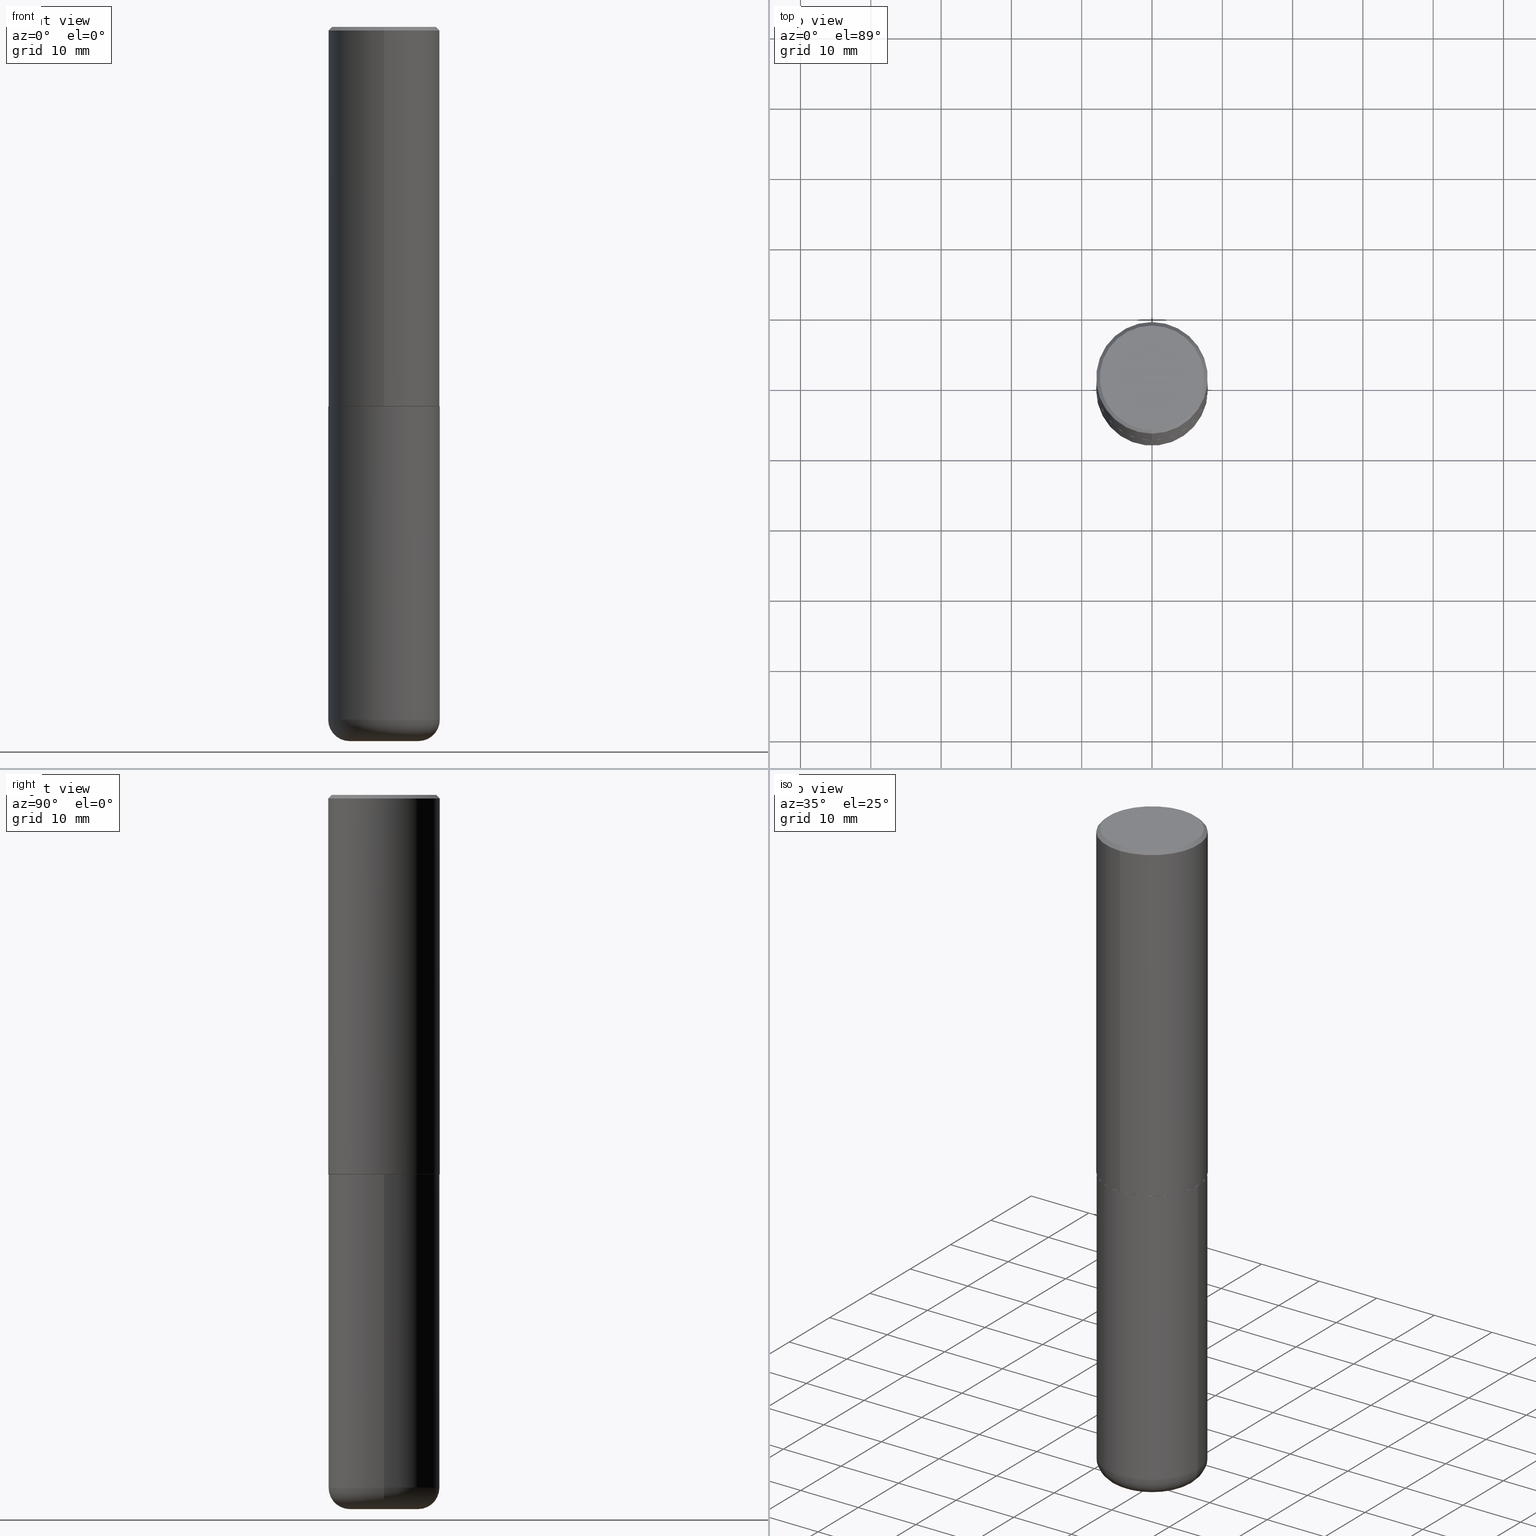
[diagram: canonical four-view strip — front | top / right | iso, engineering-drawing reading convention]
A machine part, canonical four-view strip (front | top / right | iso — engineering-drawing reading convention). The complete STEP part file that produces these views, byte-faithful:
ISO-10303-21;
HEADER;
FILE_DESCRIPTION (( 'STEP AP203' ),
    '1' );
FILE_NAME ('37611.STEP',
    '2024-03-02T05:52:38',
    ( '' ),
    ( '' ),
    'SwSTEP 2.0',
    'SolidWorks 2023',
    '' );
FILE_SCHEMA (( 'CONFIG_CONTROL_DESIGN' ));
ENDSEC;

DATA;
#1 = CARTESIAN_POINT ( 'NONE',  ( 5.195311417418712329E-29, -7.421273547068401324E-15, -2.124999999999999556 ) ) ;
#2 = PRODUCT_DEFINITION_SHAPE ( 'NONE', 'NONE',  #376 ) ;
#3 = DIRECTION ( 'NONE',  ( -2.444852431726452894E-29, 3.492364022149836358E-15, 1.000000000000000000 ) ) ;
#4 = CYLINDRICAL_SURFACE ( 'NONE', #195, 0.3125000000000000000 ) ;
#5 = AXIS2_PLACEMENT_3D ( 'NONE', #113, #397, #325 ) ;
#6 = EDGE_CURVE ( 'NONE', #357, #182, #71, .T. ) ;
#7 = EDGE_CURVE ( 'NONE', #245, #150, #144, .T. ) ;
#8 = PRODUCT ( '37611', '37611', '', ( #410 ) ) ;
#9 = CARTESIAN_POINT ( 'NONE',  ( 2.220446049250313475E-15, 0.3125000000000001665, -1.091363756921824478E-15 ) ) ;
#10 = AXIS2_PLACEMENT_3D ( 'NONE', #249, #158, #126 ) ;
#11 = APPROVAL ( #224, 'UNSPECIFIED' ) ;
#12 = CARTESIAN_POINT ( 'NONE',  ( 2.213340621892763743E-15, 0.3114999999999925606, -2.125000000000000888 ) ) ;
#13 = FACE_OUTER_BOUND ( 'NONE', #298, .T. ) ;
#14 = DIRECTION ( 'NONE',  ( -6.982962677686265922E-15, -1.000000000000000000, 3.507991003100177457E-15 ) ) ;
#15 = DIRECTION ( 'NONE',  ( -6.982962677686265922E-15, -1.000000000000000000, 3.492364022149836358E-15 ) ) ;
#16 = DIRECTION ( 'NONE',  ( -1.000000000000000000, 7.105427357600998703E-15, 0.000000000000000000 ) ) ;
#17 = ADVANCED_FACE ( 'NONE', ( #154 ), #215, .T. ) ;
#18 = AXIS2_PLACEMENT_3D ( 'NONE', #269, #400, #14 ) ;
#19 = AXIS2_PLACEMENT_3D ( 'NONE', #248, #415, #252 ) ;
#20 = DIRECTION ( 'NONE',  ( 1.000000000000000000, -6.982962677686276177E-15, 0.000000000000000000 ) ) ;
#21 = ORIENTED_EDGE ( 'NONE', *, *, #167, .F. ) ;
#22 = APPLICATION_PROTOCOL_DEFINITION ( 'international standard', 'config_control_design', 1994, #161 ) ;
#23 = DIRECTION ( 'NONE',  ( 6.982962677686265133E-15, 1.000000000000000000, -3.496765431890256920E-15 ) ) ;
#24 = VERTEX_POINT ( 'NONE', #85 ) ;
#25 = APPROVAL ( #131, 'UNSPECIFIED' ) ;
#26 = CC_DESIGN_DATE_AND_TIME_ASSIGNMENT ( #417, #383, ( #76 ) ) ;
#27 = APPROVAL_ROLE ( '' ) ;
#28 = DIRECTION ( 'NONE',  ( -6.982962677686265133E-15, -1.000000000000000000, 3.492364022149836753E-15 ) ) ;
#29 = VECTOR ( 'NONE', #149, 39.37007874015748143 ) ;
#30 = ORIENTED_EDGE ( 'NONE', *, *, #231, .F. ) ;
#31 = ORIENTED_EDGE ( 'NONE', *, *, #271, .T. ) ;
#32 = APPROVAL_DATE_TIME ( #303, #367 ) ;
#33 = DIRECTION ( 'NONE',  ( 4.937700262164541731E-15, 0.7071067811865442421, -0.7071067811865507924 ) ) ;
#34 = ORIENTED_EDGE ( 'NONE', *, *, #260, .F. ) ;
#35 = COORDINATED_UNIVERSAL_TIME_OFFSET ( 5, 0, .BEHIND. ) ;
#36 = DIRECTION ( 'NONE',  ( -2.444852431726452894E-29, 3.492364022149836358E-15, 1.000000000000000000 ) ) ;
#37 = ORGANIZATION ( 'UNSPECIFIED', 'UNSPECIFIED', '' ) ;
#38 = ORIENTED_EDGE ( 'NONE', *, *, #42, .F. ) ;
#39 = DIRECTION ( 'NONE',  ( -2.445468806185136597E-29, 3.491481338843145583E-15, 1.000000000000000000 ) ) ;
#40 = CARTESIAN_POINT ( 'NONE',  ( 5.196621213143414147E-29, -7.419397845041682046E-15, -2.124999999999999556 ) ) ;
#41 = ADVANCED_FACE ( 'NONE', ( #61 ), #112, .F. ) ;
#42 = EDGE_CURVE ( 'NONE', #408, #360, #333, .T. ) ;
#43 = CALENDAR_DATE ( 2024, 2, 3 ) ;
#44 = CONICAL_SURFACE ( 'NONE', #75, 0.3125000000000000000, 0.7853981633974471688 ) ;
#45 = APPROVAL_PERSON_ORGANIZATION ( #305, #367, #27 ) ;
#46 = CARTESIAN_POINT ( 'NONE',  ( 5.195311417418712329E-29, -7.421273547068401324E-15, -2.124999999999999556 ) ) ;
#47 = PRODUCT_RELATED_PRODUCT_CATEGORY ( 'detail', '', ( #8 ) ) ;
#48 = CARTESIAN_POINT ( 'NONE',  ( -0.1925000000000000044, -1.217915282837321360E-14, -3.880000000000000338 ) ) ;
#49 = TOROIDAL_SURFACE ( 'NONE', #151, 0.1925000000000000044, 0.1200000000000001898 ) ;
#50 = DIRECTION ( 'NONE',  ( 1.000000000000000000, -6.982962677686266711E-15, 4.876176775795936353E-29 ) ) ;
#51 = DIRECTION ( 'NONE',  ( -6.982962677686265133E-15, -1.000000000000000000, 3.492364022149836753E-15 ) ) ;
#52 = LINE ( 'NONE', #118, #59 ) ;
#53 = ORIENTED_EDGE ( 'NONE', *, *, #342, .T. ) ;
#54 = EDGE_CURVE ( 'NONE', #57, #226, #79, .T. ) ;
#55 = DIMENSIONAL_EXPONENTS ( 1.000000000000000000, 0.000000000000000000, 0.000000000000000000, 0.000000000000000000, 0.000000000000000000, 0.000000000000000000, 0.000000000000000000 ) ;
#56 = EDGE_CURVE ( 'NONE', #24, #57, #173, .T. ) ;
#57 = VERTEX_POINT ( 'NONE', #329 ) ;
#58 = AXIS2_PLACEMENT_3D ( 'NONE', #289, #3, #262 ) ;
#59 = VECTOR ( 'NONE', #180, 39.37007874015748143 ) ;
#60 = CALENDAR_DATE ( 2024, 2, 3 ) ;
#61 = FACE_OUTER_BOUND ( 'NONE', #261, .T. ) ;
#62 = CALENDAR_DATE ( 2024, 2, 3 ) ;
#63 = DIRECTION ( 'NONE',  ( 6.982962677686265922E-15, 1.000000000000000000, -3.492364022149836358E-15 ) ) ;
#64 = COORDINATED_UNIVERSAL_TIME_OFFSET ( 5, 0, .BEHIND. ) ;
#65 = CARTESIAN_POINT ( 'NONE',  ( 0.000000000000000000, 0.000000000000000000, 0.000000000000000000 ) ) ;
#66 = ORIENTED_EDGE ( 'NONE', *, *, #271, .F. ) ;
#67 = PERSON_AND_ORGANIZATION ( #105, #37 ) ;
#68 = ADVANCED_FACE ( 'NONE', ( #136 ), #265, .T. ) ;
#69 = DIRECTION ( 'NONE',  ( 2.444852431726452894E-29, -3.492364022149836358E-15, -1.000000000000000000 ) ) ;
#70 = DESIGN_CONTEXT ( 'detailed design', #161, 'design' ) ;
#71 = CIRCLE ( 'NONE', #169, 0.2924999999999999822 ) ;
#72 = ORIENTED_EDGE ( 'NONE', *, *, #394, .T. ) ;
#73 = CARTESIAN_POINT ( 'NONE',  ( 0.000000000000000000, 0.000000000000000000, 0.000000000000000000 ) ) ;
#74 = CC_DESIGN_PERSON_AND_ORGANIZATION_ASSIGNMENT ( #337, #157, ( #267 ) ) ;
#75 = AXIS2_PLACEMENT_3D ( 'NONE', #320, #138, #196 ) ;
#76 = SECURITY_CLASSIFICATION ( '', '', #313 ) ;
#77 = FACE_OUTER_BOUND ( 'NONE', #206, .T. ) ;
#78 = CARTESIAN_POINT ( 'NONE',  ( 9.488418967998330085E-29, -1.354694759471140570E-14, -3.880000000000000338 ) ) ;
#79 = LINE ( 'NONE', #179, #307 ) ;
#80 = DIRECTION ( 'NONE',  ( -2.444852431726452894E-29, 3.492364022149836358E-15, 1.000000000000000000 ) ) ;
#81 = ORIENTED_EDGE ( 'NONE', *, *, #312, .F. ) ;
#82 = VECTOR ( 'NONE', #365, 39.37007874015748143 ) ;
#83 = DIRECTION ( 'NONE',  ( 1.000000000000000000, -6.982962677686265133E-15, 0.000000000000000000 ) ) ;
#84 = EDGE_CURVE ( 'NONE', #408, #245, #324, .T. ) ;
#85 = CARTESIAN_POINT ( 'NONE',  ( 2.216893335571564642E-15, 0.3114999999999925606, -2.125000000000000888 ) ) ;
#86 = ADVANCED_FACE ( 'NONE', ( #191 ), #346, .T. ) ;
#87 = DIRECTION ( 'NONE',  ( 5.024295867788576727E-15, 0.7071067811866224018, 0.7071067811864726327 ) ) ;
#88 = EDGE_LOOP ( 'NONE', ( #331, #197, #163, #95 ) ) ;
#89 = EDGE_CURVE ( 'NONE', #182, #404, #345, .T. ) ;
#90 = DIRECTION ( 'NONE',  ( -6.982962677686266711E-15, -1.000000000000000000, 3.491481338843145583E-15 ) ) ;
#91 = APPLICATION_PROTOCOL_DEFINITION ( 'international standard', 'config_control_design', 1994, #263 ) ;
#92 = PLANE ( 'NONE',  #347 ) ;
#93 = PERSON_AND_ORGANIZATION ( #105, #37 ) ;
#94 = DIRECTION ( 'NONE',  ( 2.444852431726452333E-29, -3.492364022149836358E-15, -1.000000000000000000 ) ) ;
#95 = ORIENTED_EDGE ( 'NONE', *, *, #407, .F. ) ;
#96 = PERSON_AND_ORGANIZATION ( #105, #37 ) ;
#97 = CLOSED_SHELL ( 'NONE', ( #321, #212, #41, #244, #284, #142 ) ) ;
#98 = CARTESIAN_POINT ( 'NONE',  ( 2.112346210000095838E-15, 0.2924999999999999822, -1.012721266631419361E-15 ) ) ;
#99 = AXIS2_PLACEMENT_3D ( 'NONE', #213, #111, #332 ) ;
#100 = ADVANCED_FACE ( 'NONE', ( #168 ), #220, .T. ) ;
#101 = EDGE_LOOP ( 'NONE', ( #38, #148, #134, #270 ) ) ;
#102 = PERSON_AND_ORGANIZATION ( #105, #37 ) ;
#103 = ORIENTED_EDGE ( 'NONE', *, *, #407, .T. ) ;
#104 = DIRECTION ( 'NONE',  ( 1.000000000000000000, -6.982962677686265922E-15, 4.883557194083112340E-29 ) ) ;
#105 = PERSON ( 'UNSPECIFIED', 'UNSPECIFIED', 'UNSPECIFIED', ('UNSPECIFIED'), ('UNSPECIFIED'), ('UNSPECIFIED') ) ;
#106 = CARTESIAN_POINT ( 'NONE',  ( 2.220446049250340297E-15, 0.3124999999999928391, -2.124000000000000554 ) ) ;
#107 = CIRCLE ( 'NONE', #116, 0.3125000000000000000 ) ;
#108 = CIRCLE ( 'NONE', #292, 0.3125000000000000000 ) ;
#109 = EDGE_CURVE ( 'NONE', #182, #357, #222, .T. ) ;
#110 = CIRCLE ( 'NONE', #391, 0.3125000000000000000 ) ;
#111 = DIRECTION ( 'NONE',  ( -2.444852431726452894E-29, 3.492364022149836358E-15, 1.000000000000000000 ) ) ;
#112 = PLANE ( 'NONE',  #380 ) ;
#113 = CARTESIAN_POINT ( 'NONE',  ( 9.488418967998330085E-29, -1.354694759471140570E-14, -3.880000000000000338 ) ) ;
#114 = VERTEX_POINT ( 'NONE', #281 ) ;
#115 = ORIENTED_EDGE ( 'NONE', *, *, #89, .F. ) ;
#116 = AXIS2_PLACEMENT_3D ( 'NONE', #253, #377, #255 ) ;
#117 = CC_DESIGN_APPROVAL ( #367, ( #267 ) ) ;
#118 = CARTESIAN_POINT ( 'NONE',  ( -2.143905624303602824E-15, -0.3125000000000000555, -0.01999999999999897693 ) ) ;
#119 = EDGE_LOOP ( 'NONE', ( #66, #103, #247, #225 ) ) ;
#120 = DIRECTION ( 'NONE',  ( -2.445468806185136597E-29, 3.491481338843145583E-15, 1.000000000000000000 ) ) ;
#121 = EDGE_LOOP ( 'NONE', ( #336, #31, #409, #352 ) ) ;
#122 = VECTOR ( 'NONE', #133, 39.37007874015748143 ) ;
#123 = UNCERTAINTY_MEASURE_WITH_UNIT (LENGTH_MEASURE( 1.000000000000000082E-05 ), #160, 'distance_accuracy_value', 'NONE');
#124 = CC_DESIGN_APPROVAL ( #25, ( #376 ) ) ;
#125 = APPROVAL_DATE_TIME ( #309, #25 ) ;
#126 = DIRECTION ( 'NONE',  ( 1.000000000000000000, -6.982962677686269077E-15, 0.000000000000000000 ) ) ;
#127 = EDGE_LOOP ( 'NONE', ( #21, #250, #385, #34 ) ) ;
#128 =( NAMED_UNIT ( * ) PLANE_ANGLE_UNIT ( ) SI_UNIT ( $, .RADIAN. ) );
#129 = DIRECTION ( 'NONE',  ( -2.445468806185136877E-29, 3.491481338843145188E-15, 1.000000000000000000 ) ) ;
#130 = EDGE_CURVE ( 'NONE', #245, #408, #411, .T. ) ;
#131 = APPROVAL_STATUS ( 'not_yet_approved' ) ;
#132 = EDGE_CURVE ( 'NONE', #226, #381, #416, .T. ) ;
#133 = DIRECTION ( 'NONE',  ( -2.444852431726452614E-29, 3.492364022149836358E-15, 1.000000000000000000 ) ) ;
#134 = ORIENTED_EDGE ( 'NONE', *, *, #7, .T. ) ;
#135 = AXIS2_PLACEMENT_3D ( 'NONE', #283, #259, #188 ) ;
#136 = FACE_OUTER_BOUND ( 'NONE', #339, .T. ) ;
#137 = LOCAL_TIME ( 0, 52, 38.00000000000000000, #141 ) ;
#138 = DIRECTION ( 'NONE',  ( 2.444852431726452894E-29, -3.492364022149836358E-15, -1.000000000000000000 ) ) ;
#139 = CLOSED_SHELL ( 'NONE', ( #229, #100, #68, #200, #86, #17, #353, #164 ) ) ;
#140 = VECTOR ( 'NONE', #87, 39.37007874015748143 ) ;
#141 = COORDINATED_UNIVERSAL_TIME_OFFSET ( 5, 0, .BEHIND. ) ;
#142 = ADVANCED_FACE ( 'NONE', ( #251 ), #92, .T. ) ;
#143 = DIRECTION ( 'NONE',  ( -2.445468806185136597E-29, 3.491481338843145583E-15, 1.000000000000000000 ) ) ;
#144 = CIRCLE ( 'NONE', #316, 0.1200000000000001482 ) ;
#145 = CARTESIAN_POINT ( 'NONE',  ( -2.143905624303602824E-15, -0.3125000000000000555, -0.01999999999999897693 ) ) ;
#146 = DIRECTION ( 'NONE',  ( -4.937700262165053702E-15, -0.7071067811866175168, 0.7071067811864775177 ) ) ;
#147 =( LENGTH_UNIT ( ) NAMED_UNIT ( * ) SI_UNIT ( $, .METRE. ) );
#148 = ORIENTED_EDGE ( 'NONE', *, *, #84, .T. ) ;
#149 = DIRECTION ( 'NONE',  ( -2.445468806185136877E-29, 3.491481338843145188E-15, 1.000000000000000000 ) ) ;
#150 = VERTEX_POINT ( 'NONE', #335 ) ;
#151 = AXIS2_PLACEMENT_3D ( 'NONE', #235, #356, #104 ) ;
#152 = CIRCLE ( 'NONE', #99, 0.3125000000000000000 ) ;
#153 = PLANE ( 'NONE',  #287 ) ;
#154 = FACE_OUTER_BOUND ( 'NONE', #88, .T. ) ;
#155 = LENGTH_MEASURE_WITH_UNIT ( LENGTH_MEASURE( 0.02539999999999999897 ), #147 );
#156 = EDGE_LOOP ( 'NONE', ( #274, #359, #363, #209 ) ) ;
#157 = PERSON_AND_ORGANIZATION_ROLE ( 'creator' ) ;
#158 = DIRECTION ( 'NONE',  ( -2.445468806185136597E-29, 3.491481338843145583E-15, 1.000000000000000000 ) ) ;
#159 = AXIS2_PLACEMENT_3D ( 'NONE', #1, #288, #317 ) ;
#160 =( CONVERSION_BASED_UNIT ( 'INCH', #155 ) LENGTH_UNIT ( ) NAMED_UNIT ( #55 ) );
#161 = APPLICATION_CONTEXT ( 'configuration controlled 3d designs of mechanical parts and assemblies' ) ;
#162 = ORIENTED_EDGE ( 'NONE', *, *, #231, .T. ) ;
#163 = ORIENTED_EDGE ( 'NONE', *, *, #54, .T. ) ;
#164 = ADVANCED_FACE ( 'NONE', ( #279 ), #412, .F. ) ;
#165 = COORDINATED_UNIVERSAL_TIME_OFFSET ( 5, 0, .BEHIND. ) ;
#166 = ORIENTED_EDGE ( 'NONE', *, *, #109, .T. ) ;
#167 = EDGE_CURVE ( 'NONE', #360, #114, #414, .T. ) ;
#168 = FACE_OUTER_BOUND ( 'NONE', #121, .T. ) ;
#169 = AXIS2_PLACEMENT_3D ( 'NONE', #368, #294, #51 ) ;
#170 = EDGE_LOOP ( 'NONE', ( #166, #187 ) ) ;
#171 = DIRECTION ( 'NONE',  ( 1.000000000000000000, -6.982962677686265133E-15, 0.000000000000000000 ) ) ;
#172 = DIRECTION ( 'NONE',  ( -2.445468806185136597E-29, 3.491481338843145583E-15, 1.000000000000000000 ) ) ;
#173 = CIRCLE ( 'NONE', #18, 0.3114999999999999991 ) ;
#174 = EDGE_CURVE ( 'NONE', #381, #404, #107, .T. ) ;
#175 = DIRECTION ( 'NONE',  ( -2.445468806185136597E-29, 3.491481338843145583E-15, 1.000000000000000000 ) ) ;
#176 = LINE ( 'NONE', #12, #140 ) ;
#177 = ORIENTED_EDGE ( 'NONE', *, *, #374, .T. ) ;
#178 = AXIS2_PLACEMENT_3D ( 'NONE', #379, #94, #63 ) ;
#179 = CARTESIAN_POINT ( 'NONE',  ( -2.175192874099219874E-15, -0.3115000000000074376, -2.124999999999998668 ) ) ;
#180 = DIRECTION ( 'NONE',  ( -4.851104656540957964E-15, -0.7071067811865491270, -0.7071067811865459074 ) ) ;
#181 = EDGE_LOOP ( 'NONE', ( #72, #254, #30, #81 ) ) ;
#182 = VERTEX_POINT ( 'NONE', #98 ) ;
#183 = CC_DESIGN_PERSON_AND_ORGANIZATION_ASSIGNMENT ( #340, #190, ( #8 ) ) ;
#184 = ORIENTED_EDGE ( 'NONE', *, *, #174, .T. ) ;
#185 = CALENDAR_DATE ( 2024, 2, 3 ) ;
#186 = DIRECTION ( 'NONE',  ( -6.982962677686265133E-15, -1.000000000000000000, 3.492364022149836358E-15 ) ) ;
#187 = ORIENTED_EDGE ( 'NONE', *, *, #6, .T. ) ;
#188 = DIRECTION ( 'NONE',  ( 1.000000000000000000, -6.982962677686269077E-15, 0.000000000000000000 ) ) ;
#189 = AXIS2_PLACEMENT_3D ( 'NONE', #358, #80, #205 ) ;
#190 = PERSON_AND_ORGANIZATION_ROLE ( 'design_owner' ) ;
#191 = FACE_OUTER_BOUND ( 'NONE', #119, .T. ) ;
#192 = APPROVAL_ROLE ( '' ) ;
#193 = CARTESIAN_POINT ( 'NONE',  ( -2.182175836776959136E-15, -0.3125000000000001665, 1.091363756921824478E-15 ) ) ;
#194 = AXIS2_PLACEMENT_3D ( 'NONE', #338, #372, #28 ) ;
#195 = AXIS2_PLACEMENT_3D ( 'NONE', #73, #172, #290 ) ;
#196 = DIRECTION ( 'NONE',  ( 6.982962677686265133E-15, 1.000000000000000000, -3.496765431890256920E-15 ) ) ;
#197 = ORIENTED_EDGE ( 'NONE', *, *, #56, .T. ) ;
#198 = APPROVAL_ROLE ( '' ) ;
#199 = EDGE_CURVE ( 'NONE', #57, #24, #227, .T. ) ;
#200 = ADVANCED_FACE ( 'NONE', ( #318 ), #44, .T. ) ;
#201 = AXIS2_PLACEMENT_3D ( 'NONE', #48, #334, #16 ) ;
#202 = ADVANCED_BREP_SHAPE_REPRESENTATION ( '37611', ( #364, #232, #19 ), #396 ) ;
#203 = FACE_OUTER_BOUND ( 'NONE', #181, .T. ) ;
#204 = EDGE_LOOP ( 'NONE', ( #221, #219 ) ) ;
#205 = DIRECTION ( 'NONE',  ( -6.982962677686265922E-15, -1.000000000000000000, 3.496765431890253764E-15 ) ) ;
#206 = EDGE_LOOP ( 'NONE', ( #382, #177, #311, #389 ) ) ;
#207 = CIRCLE ( 'NONE', #299, 0.3125000000000000000 ) ;
#208 = DIRECTION ( 'NONE',  ( 1.000000000000000000, -6.982962677686269077E-15, 0.000000000000000000 ) ) ;
#209 = ORIENTED_EDGE ( 'NONE', *, *, #7, .F. ) ;
#210 = CARTESIAN_POINT ( 'NONE',  ( 5.195311417418712329E-29, -7.421273547068401324E-15, -2.124999999999999556 ) ) ;
#211 = ORIENTED_EDGE ( 'NONE', *, *, #199, .F. ) ;
#212 = ADVANCED_FACE ( 'NONE', ( #393 ), #49, .T. ) ;
#213 = CARTESIAN_POINT ( 'NONE',  ( 4.889704863452922148E-31, -6.984728044299695791E-17, -0.02000000000000006981 ) ) ;
#214 = DIRECTION ( 'NONE',  ( -1.000000000000000000, 6.982962677686265922E-15, -4.876176775795935793E-29 ) ) ;
#215 = CONICAL_SURFACE ( 'NONE', #361, 0.3114999999999999991, 0.7853981633975507526 ) ;
#216 = AXIS2_PLACEMENT_3D ( 'NONE', #78, #175, #208 ) ;
#217 = DIRECTION ( 'NONE',  ( -1.000000000000000000, 6.982962677686265922E-15, -4.876176775795935793E-29 ) ) ;
#218 = PERSON_AND_ORGANIZATION_ROLE ( 'creator' ) ;
#219 = ORIENTED_EDGE ( 'NONE', *, *, #84, .F. ) ;
#220 = CYLINDRICAL_SURFACE ( 'NONE', #395, 0.3125000000000001665 ) ;
#221 = ORIENTED_EDGE ( 'NONE', *, *, #130, .F. ) ;
#222 = CIRCLE ( 'NONE', #194, 0.2924999999999999822 ) ;
#223 =( NAMED_UNIT ( * ) SI_UNIT ( $, .STERADIAN. ) SOLID_ANGLE_UNIT ( ) );
#224 = APPROVAL_STATUS ( 'not_yet_approved' ) ;
#225 = ORIENTED_EDGE ( 'NONE', *, *, #272, .F. ) ;
#226 = VERTEX_POINT ( 'NONE', #264 ) ;
#227 = CIRCLE ( 'NONE', #319, 0.3114999999999999991 ) ;
#228 = FACE_OUTER_BOUND ( 'NONE', #127, .T. ) ;
#229 = ADVANCED_FACE ( 'NONE', ( #77 ), #354, .T. ) ;
#230 = CARTESIAN_POINT ( 'NONE',  ( 0.1925000000000000044, -1.531014567082719057E-14, -4.000000000000000888 ) ) ;
#231 = EDGE_CURVE ( 'NONE', #239, #114, #207, .T. ) ;
#232 = MANIFOLD_SOLID_BREP ( 'Body-Move/Copy2[2]', #139 ) ;
#233 = EDGE_CURVE ( 'NONE', #226, #240, #234, .T. ) ;
#234 = CIRCLE ( 'NONE', #58, 0.3125000000000002776 ) ;
#235 = CARTESIAN_POINT ( 'NONE',  ( 9.488418967998330085E-29, -1.354694759471140570E-14, -3.880000000000000338 ) ) ;
#236 = CC_DESIGN_APPROVAL ( #11, ( #76 ) ) ;
#237 = DIRECTION ( 'NONE',  ( -2.444852431726452894E-29, 3.492364022149836358E-15, 1.000000000000000000 ) ) ;
#238 = CARTESIAN_POINT ( 'NONE',  ( 9.488418967998330085E-29, -1.354694759471140570E-14, -3.880000000000000338 ) ) ;
#239 = VERTEX_POINT ( 'NONE', #390 ) ;
#240 = VERTEX_POINT ( 'NONE', #106 ) ;
#241 = AXIS2_PLACEMENT_3D ( 'NONE', #65, #36, #370 ) ;
#242 = LOCAL_TIME ( 0, 52, 38.00000000000000000, #64 ) ;
#243 = CARTESIAN_POINT ( 'NONE',  ( 2.182175836776958741E-15, 0.3124999999999999445, -0.02000000000000116268 ) ) ;
#244 = ADVANCED_FACE ( 'NONE', ( #228 ), #4, .T. ) ;
#245 = VERTEX_POINT ( 'NONE', #230 ) ;
#246 = DIRECTION ( 'NONE',  ( -2.444852431726452333E-29, 3.492364022149836358E-15, 1.000000000000000000 ) ) ;
#247 = ORIENTED_EDGE ( 'NONE', *, *, #132, .T. ) ;
#248 = CARTESIAN_POINT ( 'NONE',  ( 0.000000000000000000, 0.000000000000000000, 0.000000000000000000 ) ) ;
#249 = CARTESIAN_POINT ( 'NONE',  ( 9.781875224740547508E-29, -1.396592535537258391E-14, -4.000000000000000888 ) ) ;
#250 = ORIENTED_EDGE ( 'NONE', *, *, #296, .T. ) ;
#251 = FACE_OUTER_BOUND ( 'NONE', #204, .T. ) ;
#252 = DIRECTION ( 'NONE',  ( 1.000000000000000000, 0.000000000000000000, 0.000000000000000000 ) ) ;
#253 = CARTESIAN_POINT ( 'NONE',  ( 4.889704863452922148E-31, -6.984728044299695791E-17, -0.02000000000000006981 ) ) ;
#254 = ORIENTED_EDGE ( 'NONE', *, *, #167, .T. ) ;
#255 = DIRECTION ( 'NONE',  ( -6.982962677686265133E-15, -1.000000000000000000, 3.496765431890256920E-15 ) ) ;
#256 = CC_DESIGN_DATE_AND_TIME_ASSIGNMENT ( #280, #258, ( #376 ) ) ;
#257 = LOCAL_TIME ( 0, 52, 38.00000000000000000, #375 ) ;
#258 = DATE_TIME_ROLE ( 'creation_date' ) ;
#259 = DIRECTION ( 'NONE',  ( -2.445468806185136597E-29, 3.491481338843145583E-15, 1.000000000000000000 ) ) ;
#260 = EDGE_CURVE ( 'NONE', #114, #239, #108, .T. ) ;
#261 = EDGE_LOOP ( 'NONE', ( #162, #386 ) ) ;
#262 = DIRECTION ( 'NONE',  ( -6.982962677686265922E-15, -1.000000000000000000, 3.496765431890253764E-15 ) ) ;
#263 = APPLICATION_CONTEXT ( 'configuration controlled 3d designs of mechanical parts and assemblies' ) ;
#264 = CARTESIAN_POINT ( 'NONE',  ( -2.182175836776908254E-15, -0.3125000000000077161, -2.123999999999998334 ) ) ;
#265 = CONICAL_SURFACE ( 'NONE', #369, 0.3125000000000000000, 0.7853981633974471688 ) ;
#266 = LINE ( 'NONE', #9, #82 ) ;
#267 = PRODUCT_DEFINITION_FORMATION_WITH_SPECIFIED_SOURCE ( 'ANY', '', #8, .NOT_KNOWN. ) ;
#268 = DIRECTION ( 'NONE',  ( -2.445468806185136597E-29, 3.491481338843145583E-15, 1.000000000000000000 ) ) ;
#269 = CARTESIAN_POINT ( 'NONE',  ( 5.195311417418712329E-29, -7.421273547068401324E-15, -2.124999999999999556 ) ) ;
#270 = ORIENTED_EDGE ( 'NONE', *, *, #296, .F. ) ;
#271 = EDGE_CURVE ( 'NONE', #240, #404, #266, .T. ) ;
#272 = EDGE_CURVE ( 'NONE', #404, #381, #152, .T. ) ;
#273 = FACE_OUTER_BOUND ( 'NONE', #101, .T. ) ;
#274 = ORIENTED_EDGE ( 'NONE', *, *, #130, .T. ) ;
#275 = CARTESIAN_POINT ( 'NONE',  ( -2.075300644325887493E-15, -0.2924999999999999822, 1.030311686326234990E-15 ) ) ;
#276 = DIRECTION ( 'NONE',  ( -6.982962677686265922E-15, -1.000000000000000000, 3.507991003100177457E-15 ) ) ;
#277 = CARTESIAN_POINT ( 'NONE',  ( 5.196621213143414147E-29, -7.419397845041682046E-15, -2.124999999999999556 ) ) ;
#278 = PERSON_AND_ORGANIZATION_ROLE ( 'classification_officer' ) ;
#279 = FACE_OUTER_BOUND ( 'NONE', #170, .T. ) ;
#280 = DATE_AND_TIME ( #62, #418 ) ;
#281 = CARTESIAN_POINT ( 'NONE',  ( -0.3125000000000000000, -8.262726670626231579E-15, -2.124999999999999556 ) ) ;
#282 = PERSON_AND_ORGANIZATION ( #105, #37 ) ;
#283 = CARTESIAN_POINT ( 'NONE',  ( 9.781875224740547508E-29, -1.396592535537258391E-14, -4.000000000000000888 ) ) ;
#284 = ADVANCED_FACE ( 'NONE', ( #273 ), #355, .T. ) ;
#285 = CALENDAR_DATE ( 2024, 2, 3 ) ;
#286 = DIRECTION ( 'NONE',  ( -2.444852431726452894E-29, 3.492364022149836358E-15, 1.000000000000000000 ) ) ;
#287 = AXIS2_PLACEMENT_3D ( 'NONE', #210, #246, #15 ) ;
#288 = DIRECTION ( 'NONE',  ( -2.444852431726452894E-29, 3.492364022149836358E-15, 1.000000000000000000 ) ) ;
#289 = CARTESIAN_POINT ( 'NONE',  ( 5.192866564986985411E-29, -7.417781183046251262E-15, -2.123999999999999666 ) ) ;
#290 = DIRECTION ( 'NONE',  ( 1.000000000000000000, -6.982962677686266711E-15, 4.876176775795936353E-29 ) ) ;
#291 = VECTOR ( 'NONE', #129, 39.37007874015748143 ) ;
#292 = AXIS2_PLACEMENT_3D ( 'NONE', #351, #143, #83 ) ;
#293 = APPROVAL_DATE_TIME ( #392, #11 ) ;
#294 = DIRECTION ( 'NONE',  ( -2.444852431726452894E-29, 3.492364022149836358E-15, 1.000000000000000000 ) ) ;
#295 = DIRECTION ( 'NONE',  ( 2.438088387897960049E-29, -3.491481338843145188E-15, -1.000000000000000000 ) ) ;
#296 = EDGE_CURVE ( 'NONE', #360, #150, #362, .T. ) ;
#297 = CARTESIAN_POINT ( 'NONE',  ( 0.3125000000000000000, -2.182175836776958347E-15, 1.523805242436230075E-29 ) ) ;
#298 = EDGE_LOOP ( 'NONE', ( #211, #323 ) ) ;
#299 = AXIS2_PLACEMENT_3D ( 'NONE', #40, #39, #171 ) ;
#300 = CARTESIAN_POINT ( 'NONE',  ( 0.1925000000000000044, -1.489116791016601393E-14, -3.880000000000000338 ) ) ;
#301 = APPROVAL_PERSON_ORGANIZATION ( #102, #11, #198 ) ;
#302 = CARTESIAN_POINT ( 'NONE',  ( 5.195311417418712329E-29, -7.421273547068401324E-15, -2.124999999999999556 ) ) ;
#303 = DATE_AND_TIME ( #185, #257 ) ;
#304 = CARTESIAN_POINT ( 'NONE',  ( 4.889704863452922148E-31, -6.984728044299695791E-17, -0.02000000000000006981 ) ) ;
#305 = PERSON_AND_ORGANIZATION ( #105, #37 ) ;
#306 = CARTESIAN_POINT ( 'NONE',  ( 1.854023762560946993E-29, -2.531905987449679755E-14, -4.000000000000000000 ) ) ;
#307 = VECTOR ( 'NONE', #146, 39.37007874015748143 ) ;
#308 = AXIS2_PLACEMENT_3D ( 'NONE', #406, #120, #50 ) ;
#309 = DATE_AND_TIME ( #60, #242 ) ;
#310 = CARTESIAN_POINT ( 'NONE',  ( 2.182175836776958741E-15, 0.3124999999999999445, -0.02000000000000116268 ) ) ;
#311 = ORIENTED_EDGE ( 'NONE', *, *, #233, .F. ) ;
#312 = EDGE_CURVE ( 'NONE', #150, #239, #328, .T. ) ;
#313 = SECURITY_CLASSIFICATION_LEVEL ( 'unclassified' ) ;
#314 = CARTESIAN_POINT ( 'NONE',  ( 0.000000000000000000, 0.000000000000000000, 0.000000000000000000 ) ) ;
#315 = ORIENTED_EDGE ( 'NONE', *, *, #272, .T. ) ;
#316 = AXIS2_PLACEMENT_3D ( 'NONE', #300, #90, #20 ) ;
#317 = DIRECTION ( 'NONE',  ( -6.982962677686265922E-15, -1.000000000000000000, 3.507991003100177457E-15 ) ) ;
#318 = FACE_OUTER_BOUND ( 'NONE', #327, .T. ) ;
#319 = AXIS2_PLACEMENT_3D ( 'NONE', #46, #350, #388 ) ;
#320 = CARTESIAN_POINT ( 'NONE',  ( 4.889704863452922148E-31, -6.984728044299695791E-17, -0.02000000000000006981 ) ) ;
#321 = ADVANCED_FACE ( 'NONE', ( #203 ), #403, .T. ) ;
#322 = CARTESIAN_POINT ( 'NONE',  ( -0.3125000000000000555, -1.132650154546109262E-14, -3.880000000000000338 ) ) ;
#323 = ORIENTED_EDGE ( 'NONE', *, *, #56, .F. ) ;
#324 = CIRCLE ( 'NONE', #10, 0.1925000000000000044 ) ;
#325 = DIRECTION ( 'NONE',  ( 1.000000000000000000, -6.982962677686265922E-15, 4.883557194083112340E-29 ) ) ;
#326 = CIRCLE ( 'NONE', #189, 0.3125000000000002776 ) ;
#327 = EDGE_LOOP ( 'NONE', ( #366, #344, #401, #315 ) ) ;
#328 = LINE ( 'NONE', #297, #29 ) ;
#329 = CARTESIAN_POINT ( 'NONE',  ( -2.175192874099219874E-15, -0.3115000000000074376, -2.124999999999998668 ) ) ;
#330 = CARTESIAN_POINT ( 'NONE',  ( -0.1925000000000000044, -1.196231606724774300E-14, -4.000000000000000888 ) ) ;
#331 = ORIENTED_EDGE ( 'NONE', *, *, #374, .F. ) ;
#332 = DIRECTION ( 'NONE',  ( -6.982962677686265133E-15, -1.000000000000000000, 3.496765431890256920E-15 ) ) ;
#333 = CIRCLE ( 'NONE', #201, 0.1200000000000001482 ) ;
#334 = DIRECTION ( 'NONE',  ( 7.105427357601001859E-15, 1.000000000000000000, -3.491481338843145583E-15 ) ) ;
#335 = CARTESIAN_POINT ( 'NONE',  ( 0.3125000000000000555, -1.572912343148836404E-14, -3.880000000000000338 ) ) ;
#336 = ORIENTED_EDGE ( 'NONE', *, *, #233, .T. ) ;
#337 = PERSON_AND_ORGANIZATION ( #105, #37 ) ;
#338 = CARTESIAN_POINT ( 'NONE',  ( -2.150299018297948745E-46, 3.071607443834507134E-32, 8.795209847407834549E-18 ) ) ;
#339 = EDGE_LOOP ( 'NONE', ( #373, #53, #184, #115 ) ) ;
#340 = PERSON_AND_ORGANIZATION ( #105, #37 ) ;
#341 = CARTESIAN_POINT ( 'NONE',  ( -0.3125000000000000000, 2.220446049250313081E-15, -1.537167215704658232E-29 ) ) ;
#342 = EDGE_CURVE ( 'NONE', #357, #381, #52, .T. ) ;
#343 = LOCAL_TIME ( 0, 52, 38.00000000000000000, #35 ) ;
#344 = ORIENTED_EDGE ( 'NONE', *, *, #109, .F. ) ;
#345 = LINE ( 'NONE', #310, #402 ) ;
#346 = CYLINDRICAL_SURFACE ( 'NONE', #241, 0.3125000000000001665 ) ;
#347 = AXIS2_PLACEMENT_3D ( 'NONE', #306, #384, #217 ) ;
#348 = CC_DESIGN_SECURITY_CLASSIFICATION ( #76, ( #267 ) ) ;
#349 = SHAPE_DEFINITION_REPRESENTATION ( #2, #202 ) ;
#350 = DIRECTION ( 'NONE',  ( -2.444852431726452894E-29, 3.492364022149836358E-15, 1.000000000000000000 ) ) ;
#351 = CARTESIAN_POINT ( 'NONE',  ( 5.196621213143414147E-29, -7.419397845041682046E-15, -2.124999999999999556 ) ) ;
#352 = ORIENTED_EDGE ( 'NONE', *, *, #132, .F. ) ;
#353 = ADVANCED_FACE ( 'NONE', ( #13 ), #153, .F. ) ;
#354 = CONICAL_SURFACE ( 'NONE', #159, 0.3114999999999999991, 0.7853981633975507526 ) ;
#355 = TOROIDAL_SURFACE ( 'NONE', #5, 0.1925000000000000044, 0.1200000000000001898 ) ;
#356 = DIRECTION ( 'NONE',  ( -2.445468806185136597E-29, 3.491481338843145583E-15, 1.000000000000000000 ) ) ;
#357 = VERTEX_POINT ( 'NONE', #275 ) ;
#358 = CARTESIAN_POINT ( 'NONE',  ( 5.192866564986985411E-29, -7.417781183046251262E-15, -2.123999999999999666 ) ) ;
#359 = ORIENTED_EDGE ( 'NONE', *, *, #42, .T. ) ;
#360 = VERTEX_POINT ( 'NONE', #322 ) ;
#361 = AXIS2_PLACEMENT_3D ( 'NONE', #302, #237, #276 ) ;
#362 = CIRCLE ( 'NONE', #216, 0.3125000000000000000 ) ;
#363 = ORIENTED_EDGE ( 'NONE', *, *, #394, .F. ) ;
#364 = MANIFOLD_SOLID_BREP ( 'Body-Move/Copy2[1]', #97 ) ;
#365 = DIRECTION ( 'NONE',  ( -2.444852431726452614E-29, 3.492364022149836358E-15, 1.000000000000000000 ) ) ;
#366 = ORIENTED_EDGE ( 'NONE', *, *, #342, .F. ) ;
#367 = APPROVAL ( #413, 'UNSPECIFIED' ) ;
#368 = CARTESIAN_POINT ( 'NONE',  ( -2.150299018297948745E-46, 3.071607443834507134E-32, 8.795209847407834549E-18 ) ) ;
#369 = AXIS2_PLACEMENT_3D ( 'NONE', #304, #69, #23 ) ;
#370 = DIRECTION ( 'NONE',  ( -6.982962677686265133E-15, -1.000000000000000000, 3.492364022149836358E-15 ) ) ;
#371 = APPROVAL_PERSON_ORGANIZATION ( #67, #25, #192 ) ;
#372 = DIRECTION ( 'NONE',  ( -2.444852431726452894E-29, 3.492364022149836358E-15, 1.000000000000000000 ) ) ;
#373 = ORIENTED_EDGE ( 'NONE', *, *, #6, .F. ) ;
#374 = EDGE_CURVE ( 'NONE', #24, #240, #176, .T. ) ;
#375 = COORDINATED_UNIVERSAL_TIME_OFFSET ( 5, 0, .BEHIND. ) ;
#376 = PRODUCT_DEFINITION ( 'UNKNOWN', '', #267, #70 ) ;
#377 = DIRECTION ( 'NONE',  ( -2.444852431726452894E-29, 3.492364022149836358E-15, 1.000000000000000000 ) ) ;
#378 = PERSON_AND_ORGANIZATION_ROLE ( 'design_supplier' ) ;
#379 = CARTESIAN_POINT ( 'NONE',  ( 2.042516583223232540E-15, 0.2924999999999999822, -1.017118871555123169E-15 ) ) ;
#380 = AXIS2_PLACEMENT_3D ( 'NONE', #277, #295, #214 ) ;
#381 = VERTEX_POINT ( 'NONE', #145 ) ;
#382 = ORIENTED_EDGE ( 'NONE', *, *, #199, .T. ) ;
#383 = DATE_TIME_ROLE ( 'classification_date' ) ;
#384 = DIRECTION ( 'NONE',  ( 2.438088387897960049E-29, -3.491481338843145188E-15, -1.000000000000000000 ) ) ;
#385 = ORIENTED_EDGE ( 'NONE', *, *, #312, .T. ) ;
#386 = ORIENTED_EDGE ( 'NONE', *, *, #260, .T. ) ;
#387 = CC_DESIGN_PERSON_AND_ORGANIZATION_ASSIGNMENT ( #282, #378, ( #267 ) ) ;
#388 = DIRECTION ( 'NONE',  ( -6.982962677686265922E-15, -1.000000000000000000, 3.507991003100177457E-15 ) ) ;
#389 = ORIENTED_EDGE ( 'NONE', *, *, #54, .F. ) ;
#390 = CARTESIAN_POINT ( 'NONE',  ( 0.3125000000000000000, -9.601573681818640393E-15, -2.124999999999999556 ) ) ;
#391 = AXIS2_PLACEMENT_3D ( 'NONE', #238, #268, #399 ) ;
#392 = DATE_AND_TIME ( #43, #137 ) ;
#393 = FACE_OUTER_BOUND ( 'NONE', #156, .T. ) ;
#394 = EDGE_CURVE ( 'NONE', #150, #360, #110, .T. ) ;
#395 = AXIS2_PLACEMENT_3D ( 'NONE', #314, #286, #186 ) ;
#396 =( GEOMETRIC_REPRESENTATION_CONTEXT ( 3 ) GLOBAL_UNCERTAINTY_ASSIGNED_CONTEXT ( ( #123 ) ) GLOBAL_UNIT_ASSIGNED_CONTEXT ( ( #160, #128, #223 ) ) REPRESENTATION_CONTEXT ( 'NONE', 'WORKASPACE' ) );
#397 = DIRECTION ( 'NONE',  ( -2.445468806185136597E-29, 3.491481338843145583E-15, 1.000000000000000000 ) ) ;
#398 = CC_DESIGN_PERSON_AND_ORGANIZATION_ASSIGNMENT ( #93, #218, ( #376 ) ) ;
#399 = DIRECTION ( 'NONE',  ( 1.000000000000000000, -6.982962677686269077E-15, 0.000000000000000000 ) ) ;
#400 = DIRECTION ( 'NONE',  ( -2.444852431726452894E-29, 3.492364022149836358E-15, 1.000000000000000000 ) ) ;
#401 = ORIENTED_EDGE ( 'NONE', *, *, #89, .T. ) ;
#402 = VECTOR ( 'NONE', #33, 39.37007874015748143 ) ;
#403 = CYLINDRICAL_SURFACE ( 'NONE', #308, 0.3125000000000000000 ) ;
#404 = VERTEX_POINT ( 'NONE', #243 ) ;
#405 = CC_DESIGN_PERSON_AND_ORGANIZATION_ASSIGNMENT ( #96, #278, ( #76 ) ) ;
#406 = CARTESIAN_POINT ( 'NONE',  ( 0.000000000000000000, 0.000000000000000000, 0.000000000000000000 ) ) ;
#407 = EDGE_CURVE ( 'NONE', #240, #226, #326, .T. ) ;
#408 = VERTEX_POINT ( 'NONE', #330 ) ;
#409 = ORIENTED_EDGE ( 'NONE', *, *, #174, .F. ) ;
#410 = MECHANICAL_CONTEXT ( 'NONE', #263, 'mechanical' ) ;
#411 = CIRCLE ( 'NONE', #135, 0.1925000000000000044 ) ;
#412 = PLANE ( 'NONE',  #178 ) ;
#413 = APPROVAL_STATUS ( 'not_yet_approved' ) ;
#414 = LINE ( 'NONE', #341, #291 ) ;
#415 = DIRECTION ( 'NONE',  ( 0.000000000000000000, 0.000000000000000000, 1.000000000000000000 ) ) ;
#416 = LINE ( 'NONE', #193, #122 ) ;
#417 = DATE_AND_TIME ( #285, #343 ) ;
#418 = LOCAL_TIME ( 0, 52, 38.00000000000000000, #165 ) ;
ENDSEC;
END-ISO-10303-21;
